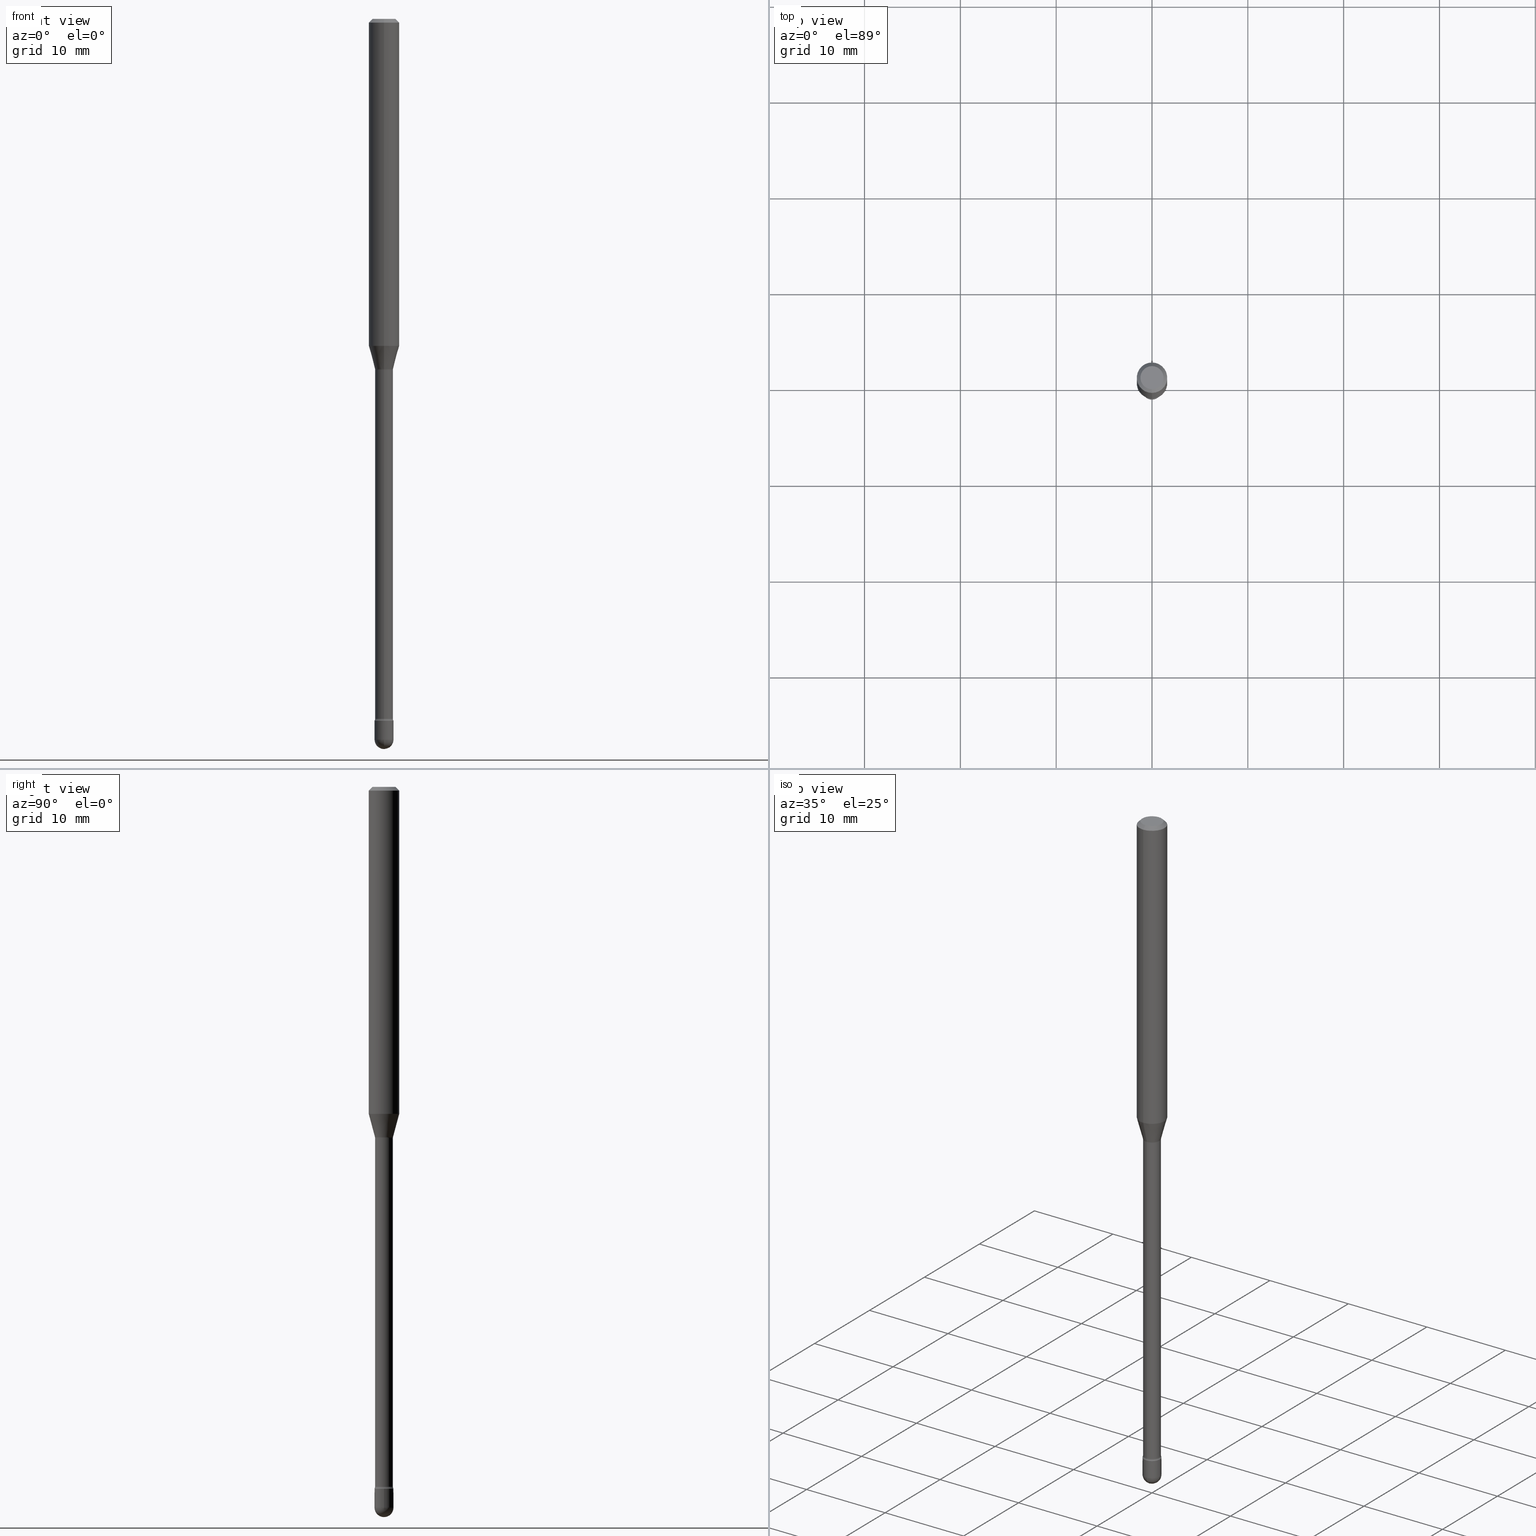
[diagram: canonical four-view strip — front | top / right | iso, engineering-drawing reading convention]
A machine part, canonical four-view strip (front | top / right | iso — engineering-drawing reading convention). The complete STEP part file that produces these views, byte-faithful:
ISO-10303-21;
HEADER;
FILE_DESCRIPTION (( 'STEP AP203' ),
    '1' );
FILE_NAME ('03957.STEP',
    '2024-04-09T21:26:37',
    ( '' ),
    ( '' ),
    'SwSTEP 2.0',
    'SolidWorks 2023',
    '' );
FILE_SCHEMA (( 'CONFIG_CONTROL_DESIGN' ));
ENDSEC;

DATA;
#1 = PERSON_AND_ORGANIZATION ( #190, #242 ) ;
#2 = CARTESIAN_POINT ( 'NONE',  ( 7.050366405053863188E-29, -1.006582636901149297E-14, -2.883000000000000451 ) ) ;
#3 = AXIS2_PLACEMENT_3D ( 'NONE', #455, #237, #415 ) ;
#4 = DIRECTION ( 'NONE',  ( -2.445496498457808529E-29, 3.491441681932533187E-15, 1.000000000000000000 ) ) ;
#5 = ORIENTED_EDGE ( 'NONE', *, *, #566, .T. ) ;
#6 = EDGE_CURVE ( 'NONE', #453, #73, #411, .T. ) ;
#7 = DIRECTION ( 'NONE',  ( -6.982962677686265922E-15, -1.000000000000000000, 0.000000000000000000 ) ) ;
#8 = ORIENTED_EDGE ( 'NONE', *, *, #533, .T. ) ;
#9 = AXIS2_PLACEMENT_3D ( 'NONE', #109, #82, #250 ) ;
#10 = CARTESIAN_POINT ( 'NONE',  ( 4.364351673553919652E-16, 0.06249999999999995143, -0.01500000000000030129 ) ) ;
#11 = CIRCLE ( 'NONE', #65, 0.06250000000000000000 ) ;
#12 = VECTOR ( 'NONE', #531, 39.37007874015748143 ) ;
#13 = AXIS2_PLACEMENT_3D ( 'NONE', #466, #285, #240 ) ;
#14 = VERTEX_POINT ( 'NONE', #425 ) ;
#15 = VERTEX_POINT ( 'NONE', #248 ) ;
#16 = APPROVAL_DATE_TIME ( #405, #39 ) ;
#17 = DIRECTION ( 'NONE',  ( -4.851104656540964275E-15, -0.7071067811865500152, -0.7071067811865450192 ) ) ;
#18 = ADVANCED_FACE ( 'NONE', ( #427 ), #198, .F. ) ;
#19 = CARTESIAN_POINT ( 'NONE',  ( 3.526304362048192117E-29, -5.034628061512207584E-15, -1.441974787463811136 ) ) ;
#20 = AXIS2_PLACEMENT_3D ( 'NONE', #397, #222, #129 ) ;
#21 = TOROIDAL_SURFACE ( 'NONE', #189, 0.05165000000000018188, 0.01500000000000006883 ) ;
#22 = CARTESIAN_POINT ( 'NONE',  ( -2.594946623866130786E-16, -0.03716111260566901109, -1.438092501787273214 ) ) ;
#23 = EDGE_CURVE ( 'NONE', #416, #201, #334, .T. ) ;
#24 = CARTESIAN_POINT ( 'NONE',  ( 3.526344293607193167E-29, -5.034570877246955827E-15, -1.441974787463811136 ) ) ;
#25 = ORIENTED_EDGE ( 'NONE', *, *, #6, .T. ) ;
#26 = DIRECTION ( 'NONE',  ( -2.445496498457808529E-29, 3.491441681932533187E-15, 1.000000000000000000 ) ) ;
#27 = DIRECTION ( 'NONE',  ( -1.000000000000000000, 6.982962677686265922E-15, -4.883557194083112340E-29 ) ) ;
#28 = VECTOR ( 'NONE', #563, 39.37007874015748143 ) ;
#29 = CARTESIAN_POINT ( 'NONE',  ( 3.668244747686732990E-31, -5.237162522898829216E-17, -0.01500000000000008271 ) ) ;
#30 = SPHERICAL_SURFACE ( 'NONE', #46, 0.03899999999999989586 ) ;
#31 = CARTESIAN_POINT ( 'NONE',  ( 3.285589318625157150E-29, -4.690844376180609543E-15, -1.343526486624344818 ) ) ;
#32 = CARTESIAN_POINT ( 'NONE',  ( -2.559255821372020374E-16, -0.03665000000000005753, 6.060347365340735884E-16 ) ) ;
#33 = ADVANCED_FACE ( 'NONE', ( #71 ), #30, .T. ) ;
#34 = DIRECTION ( 'NONE',  ( -6.982962677686265922E-15, -1.000000000000000000, 3.491441681932533187E-15 ) ) ;
#35 = ORIENTED_EDGE ( 'NONE', *, *, #205, .F. ) ;
#36 = AXIS2_PLACEMENT_3D ( 'NONE', #300, #125, #477 ) ;
#37 = LOCAL_TIME ( 17, 26, 37.00000000000000000, #86 ) ;
#38 = PLANE ( 'NONE',  #433 ) ;
#39 = APPROVAL ( #94, 'UNSPECIFIED' ) ;
#40 = DIRECTION ( 'NONE',  ( -6.982962677686267499E-15, -1.000000000000000000, 0.000000000000000000 ) ) ;
#41 = APPROVAL_DATE_TIME ( #435, #309 ) ;
#42 = DIRECTION ( 'NONE',  ( -6.982962677686266711E-15, -1.000000000000000000, 0.000000000000000000 ) ) ;
#43 = CC_DESIGN_PERSON_AND_ORGANIZATION_ASSIGNMENT ( #295, #88, ( #241 ) ) ;
#44 = CC_DESIGN_DATE_AND_TIME_ASSIGNMENT ( #350, #437, ( #326 ) ) ;
#45 =( LENGTH_UNIT ( ) NAMED_UNIT ( * ) SI_UNIT ( $, .METRE. ) );
#46 = AXIS2_PLACEMENT_3D ( 'NONE', #418, #27, #197 ) ;
#47 = DIRECTION ( 'NONE',  ( -2.445496498457808529E-29, 3.491441681932533187E-15, 1.000000000000000000 ) ) ;
#48 = CONICAL_SURFACE ( 'NONE', #368, 0.03716111260566398733, 0.2617993877991494633 ) ;
#49 = PERSON_AND_ORGANIZATION ( #190, #242 ) ;
#50 = CARTESIAN_POINT ( 'NONE',  ( 7.241033135114191454E-29, -1.033827624431455434E-14, -2.961000000000000298 ) ) ;
#51 = CALENDAR_DATE ( 2024, 9, 4 ) ;
#52 = DIRECTION ( 'NONE',  ( -2.445468806185136597E-29, 3.491481338843145583E-15, 1.000000000000000000 ) ) ;
#53 = ORIENTED_EDGE ( 'NONE', *, *, #510, .F. ) ;
#54 = VERTEX_POINT ( 'NONE', #378 ) ;
#55 = DIRECTION ( 'NONE',  ( -6.982962677686265922E-15, -1.000000000000000000, 3.491441681932533582E-15 ) ) ;
#56 = CIRCLE ( 'NONE', #537, 0.06250000000000000000 ) ;
#57 = EDGE_LOOP ( 'NONE', ( #559, #380, #35, #542 ) ) ;
#58 = ADVANCED_FACE ( 'NONE', ( #555 ), #114, .T. ) ;
#59 = LINE ( 'NONE', #406, #487 ) ;
#60 = CARTESIAN_POINT ( 'NONE',  ( 0.03900000000000000688, -1.047444401652943635E-14, -2.961000000000000298 ) ) ;
#61 = ORIENTED_EDGE ( 'NONE', *, *, #99, .F. ) ;
#62 = CC_DESIGN_PERSON_AND_ORGANIZATION_ASSIGNMENT ( #528, #130, ( #252 ) ) ;
#63 = CARTESIAN_POINT ( 'NONE',  ( 0.000000000000000000, 0.000000000000000000, 0.000000000000000000 ) ) ;
#64 = APPROVAL_PERSON_ORGANIZATION ( #124, #309, #393 ) ;
#65 = AXIS2_PLACEMENT_3D ( 'NONE', #525, #399, #445 ) ;
#66 = CIRCLE ( 'NONE', #395, 0.03900000000000000688 ) ;
#67 = ADVANCED_FACE ( 'NONE', ( #513 ), #251, .T. ) ;
#68 = DIRECTION ( 'NONE',  ( -6.982962677686265922E-15, -1.000000000000000000, 3.491441681932533187E-15 ) ) ;
#69 = ORIENTED_EDGE ( 'NONE', *, *, #321, .T. ) ;
#70 = CARTESIAN_POINT ( 'NONE',  ( -2.559255821371321246E-16, -0.03665000000001015362, -2.874939137763242059 ) ) ;
#71 = FACE_OUTER_BOUND ( 'NONE', #185, .T. ) ;
#72 = DIRECTION ( 'NONE',  ( -2.445496498457808529E-29, 3.491441681932533187E-15, 1.000000000000000000 ) ) ;
#73 = VERTEX_POINT ( 'NONE', #521 ) ;
#74 = EDGE_LOOP ( 'NONE', ( #386, #480, #143, #238 ) ) ;
#75 = AXIS2_PLACEMENT_3D ( 'NONE', #505, #107, #279 ) ;
#76 = CARTESIAN_POINT ( 'NONE',  ( 2.640455861472115001E-16, 0.03716111260565897051, -1.438092501787273214 ) ) ;
#77 = EDGE_CURVE ( 'NONE', #465, #54, #11, .T. ) ;
#78 = ORIENTED_EDGE ( 'NONE', *, *, #471, .T. ) ;
#79 = CARTESIAN_POINT ( 'NONE',  ( -1.169113584055446105E-44, 1.669184350826100908E-30, 4.780733988912460139E-16 ) ) ;
#80 = VERTEX_POINT ( 'NONE', #438 ) ;
#81 = EDGE_LOOP ( 'NONE', ( #246, #341, #135, #343 ) ) ;
#82 = DIRECTION ( 'NONE',  ( -2.445496498457808529E-29, 3.491441681932533187E-15, 1.000000000000000000 ) ) ;
#83 = CARTESIAN_POINT ( 'NONE',  ( 3.516850177579206670E-29, -5.021016103214722180E-15, -1.438092501787273214 ) ) ;
#84 = EDGE_CURVE ( 'NONE', #416, #80, #412, .T. ) ;
#85 = CONICAL_SURFACE ( 'NONE', #323, 0.06250000000000000000, 0.7853981633974483900 ) ;
#86 = COORDINATED_UNIVERSAL_TIME_OFFSET ( 5, 0, .BEHIND. ) ;
#87 = LINE ( 'NONE', #351, #28 ) ;
#88 = PERSON_AND_ORGANIZATION_ROLE ( 'design_owner' ) ;
#89 = DIRECTION ( 'NONE',  ( -2.445468806185136597E-29, 3.491481338843145583E-15, 1.000000000000000000 ) ) ;
#90 = EDGE_LOOP ( 'NONE', ( #491, #167 ) ) ;
#91 = DIRECTION ( 'NONE',  ( -6.982962677686266711E-15, -1.000000000000000000, 3.491441681932533582E-15 ) ) ;
#92 = PERSON_AND_ORGANIZATION_ROLE ( 'creator' ) ;
#93 = CARTESIAN_POINT ( 'NONE',  ( -3.606700223024266282E-16, -0.05165000000001022246, -2.874939137763242059 ) ) ;
#94 = APPROVAL_STATUS ( 'not_yet_approved' ) ;
#95 = PLANE ( 'NONE',  #332 ) ;
#96 = DATE_AND_TIME ( #141, #401 ) ;
#97 = DIRECTION ( 'NONE',  ( 2.445496498457808529E-29, -3.491441681932533187E-15, -1.000000000000000000 ) ) ;
#98 = ORIENTED_EDGE ( 'NONE', *, *, #223, .T. ) ;
#99 = EDGE_CURVE ( 'NONE', #416, #14, #136, .T. ) ;
#100 = DATE_TIME_ROLE ( 'classification_date' ) ;
#101 = LOCAL_TIME ( 17, 26, 37.00000000000000000, #263 ) ;
#102 = DIRECTION ( 'NONE',  ( 4.937700262164548042E-15, 0.7071067811865451302, -0.7071067811865499042 ) ) ;
#103 = EDGE_LOOP ( 'NONE', ( #53, #550, #112, #274 ) ) ;
#104 = DIRECTION ( 'NONE',  ( 2.445496498457808529E-29, -3.491441681932533187E-15, -1.000000000000000000 ) ) ;
#105 = EDGE_LOOP ( 'NONE', ( #277, #25, #428, #162 ) ) ;
#106 = CC_DESIGN_PERSON_AND_ORGANIZATION_ASSIGNMENT ( #1, #173, ( #499 ) ) ;
#107 = DIRECTION ( 'NONE',  ( -2.445496498457808529E-29, 3.491441681932533187E-15, 1.000000000000000000 ) ) ;
#108 = ADVANCED_FACE ( 'NONE', ( #535 ), #38, .F. ) ;
#109 = CARTESIAN_POINT ( 'NONE',  ( 3.516850177579206670E-29, -5.021016103214722180E-15, -1.438092501787273214 ) ) ;
#110 = CIRCLE ( 'NONE', #180, 0.04749999999999999362 ) ;
#111 = CYLINDRICAL_SURFACE ( 'NONE', #434, 0.06250000000000000000 ) ;
#112 = ORIENTED_EDGE ( 'NONE', *, *, #284, .T. ) ;
#113 = CARTESIAN_POINT ( 'NONE',  ( -3.773273898774340269E-16, -0.04749999999999999362, 8.309456411699580743E-17 ) ) ;
#114 = SPHERICAL_SURFACE ( 'NONE', #20, 0.03899999999999989586 ) ;
#115 = EDGE_CURVE ( 'NONE', #157, #446, #292, .T. ) ;
#116 = FACE_OUTER_BOUND ( 'NONE', #459, .T. ) ;
#117 = ORIENTED_EDGE ( 'NONE', *, *, #462, .F. ) ;
#118 = ORIENTED_EDGE ( 'NONE', *, *, #155, .F. ) ;
#119 = AXIS2_PLACEMENT_3D ( 'NONE', #2, #538, #267 ) ;
#120 = DIRECTION ( 'NONE',  ( -6.982962677686265133E-15, -1.000000000000000000, 0.000000000000000000 ) ) ;
#121 = EDGE_LOOP ( 'NONE', ( #265, #230, #69, #249 ) ) ;
#122 = ORIENTED_EDGE ( 'NONE', *, *, #140, .T. ) ;
#123 = EDGE_CURVE ( 'NONE', #204, #338, #87, .T. ) ;
#124 = PERSON_AND_ORGANIZATION ( #190, #242 ) ;
#125 = DIRECTION ( 'NONE',  ( -2.445496498457808529E-29, 3.491441681932533187E-15, 1.000000000000000000 ) ) ;
#126 = CIRCLE ( 'NONE', #9, 0.03716111260566398733 ) ;
#127 = CLOSED_SHELL ( 'NONE', ( #371, #382, #174, #349, #492, #275, #218, #67, #329, #108, #233, #18, #482, #516 ) ) ;
#128 = CIRCLE ( 'NONE', #362, 0.01500000000000001853 ) ;
#129 = DIRECTION ( 'NONE',  ( 6.982962677686265922E-15, 1.000000000000000000, 0.000000000000000000 ) ) ;
#130 = PERSON_AND_ORGANIZATION_ROLE ( 'classification_officer' ) ;
#131 = FACE_OUTER_BOUND ( 'NONE', #103, .T. ) ;
#132 = EDGE_CURVE ( 'NONE', #338, #187, #507, .T. ) ;
#133 = APPROVAL_STATUS ( 'not_yet_approved' ) ;
#134 = DIRECTION ( 'NONE',  ( -6.982962677686265922E-15, -1.000000000000000000, 3.491441681932533187E-15 ) ) ;
#135 = ORIENTED_EDGE ( 'NONE', *, *, #115, .F. ) ;
#136 = CIRCLE ( 'NONE', #262, 0.01500000000000007057 ) ;
#137 = CARTESIAN_POINT ( 'NONE',  ( 7.241033135114191454E-29, -1.033827624431455434E-14, -2.961000000000000298 ) ) ;
#138 = ORIENTED_EDGE ( 'NONE', *, *, #544, .F. ) ;
#139 = DIRECTION ( 'NONE',  ( -2.438088387897960049E-29, 3.491481338843145188E-15, 1.000000000000000000 ) ) ;
#140 = EDGE_CURVE ( 'NONE', #254, #201, #128, .T. ) ;
#141 = CALENDAR_DATE ( 2024, 9, 4 ) ;
#142 = DIRECTION ( 'NONE',  ( -2.445496498457807969E-29, 3.491441681932533582E-15, 1.000000000000000000 ) ) ;
#143 = ORIENTED_EDGE ( 'NONE', *, *, #440, .T. ) ;
#144 = CARTESIAN_POINT ( 'NONE',  ( 3.668244747686732990E-31, -5.237162522898829216E-17, -0.01500000000000008271 ) ) ;
#145 = AXIS2_PLACEMENT_3D ( 'NONE', #24, #460, #120 ) ;
#146 = ORIENTED_EDGE ( 'NONE', *, *, #258, .F. ) ;
#147 = FACE_OUTER_BOUND ( 'NONE', #278, .T. ) ;
#148 = LINE ( 'NONE', #328, #553 ) ;
#149 = CARTESIAN_POINT ( 'NONE',  ( -4.364351673553912750E-16, -0.06250000000000005551, -0.01499999999999986587 ) ) ;
#150 = AXIS2_PLACEMENT_3D ( 'NONE', #560, #165, #523 ) ;
#151 = ORIENTED_EDGE ( 'NONE', *, *, #23, .F. ) ;
#152 = CIRCLE ( 'NONE', #227, 0.03899999999999989586 ) ;
#153 = CARTESIAN_POINT ( 'NONE',  ( 4.440892098500625669E-16, 0.06250000000000000000, 2.598582937704627637E-16 ) ) ;
#154 = ORIENTED_EDGE ( 'NONE', *, *, #99, .T. ) ;
#155 = EDGE_CURVE ( 'NONE', #80, #416, #402, .T. ) ;
#156 = DIRECTION ( 'NONE',  ( -2.445496498457808529E-29, 3.491441681932533187E-15, 1.000000000000000000 ) ) ;
#157 = VERTEX_POINT ( 'NONE', #529 ) ;
#158 = ORIENTED_EDGE ( 'NONE', *, *, #23, .T. ) ;
#159 = CARTESIAN_POINT ( 'NONE',  ( 3.526304362048192117E-29, -5.034628061512207584E-15, -1.441974787463811136 ) ) ;
#160 = ORIENTED_EDGE ( 'NONE', *, *, #123, .F. ) ;
#161 = AXIS2_PLACEMENT_3D ( 'NONE', #483, #47, #432 ) ;
#162 = ORIENTED_EDGE ( 'NONE', *, *, #140, .F. ) ;
#163 = AXIS2_PLACEMENT_3D ( 'NONE', #497, #229, #409 ) ;
#164 = EDGE_CURVE ( 'NONE', #536, #562, #110, .T. ) ;
#165 = DIRECTION ( 'NONE',  ( -2.445468806185136597E-29, 3.491481338843145583E-15, 1.000000000000000000 ) ) ;
#166 = ORIENTED_EDGE ( 'NONE', *, *, #527, .F. ) ;
#167 = ORIENTED_EDGE ( 'NONE', *, *, #164, .T. ) ;
#168 = DATE_AND_TIME ( #389, #375 ) ;
#169 = DIRECTION ( 'NONE',  ( -6.982962677686266711E-15, -1.000000000000000000, 0.000000000000000000 ) ) ;
#170 = PERSON_AND_ORGANIZATION ( #190, #242 ) ;
#171 = DIRECTION ( 'NONE',  ( -2.445496498457808529E-29, 3.491441681932533187E-15, 1.000000000000000000 ) ) ;
#172 = APPROVAL_PERSON_ORGANIZATION ( #503, #39, #489 ) ;
#173 = PERSON_AND_ORGANIZATION_ROLE ( 'design_supplier' ) ;
#174 = ADVANCED_FACE ( 'NONE', ( #394 ), #21, .F. ) ;
#175 = DIRECTION ( 'NONE',  ( -2.445496498457808529E-29, 3.491441681932533187E-15, 1.000000000000000000 ) ) ;
#176 = ORIENTED_EDGE ( 'NONE', *, *, #181, .F. ) ;
#177 = DIRECTION ( 'NONE',  ( -2.445496498457808529E-29, 3.491441681932533187E-15, 1.000000000000000000 ) ) ;
#178 = ORIENTED_EDGE ( 'NONE', *, *, #471, .F. ) ;
#179 = CC_DESIGN_APPROVAL ( #39, ( #252 ) ) ;
#180 = AXIS2_PLACEMENT_3D ( 'NONE', #436, #177, #91 ) ;
#181 = EDGE_CURVE ( 'NONE', #381, #187, #355, .T. ) ;
#182 = DIRECTION ( 'NONE',  ( -2.445496498457808529E-29, 3.491441681932533187E-15, 1.000000000000000000 ) ) ;
#183 = VECTOR ( 'NONE', #340, 39.37007874015748143 ) ;
#184 = FACE_OUTER_BOUND ( 'NONE', #317, .T. ) ;
#185 = EDGE_LOOP ( 'NONE', ( #294, #419, #146, #320 ) ) ;
#186 = FACE_OUTER_BOUND ( 'NONE', #121, .T. ) ;
#187 = VERTEX_POINT ( 'NONE', #264 ) ;
#188 = DIRECTION ( 'NONE',  ( -2.445496498457808529E-29, 3.491441681932533187E-15, 1.000000000000000000 ) ) ;
#189 = AXIS2_PLACEMENT_3D ( 'NONE', #439, #4, #360 ) ;
#190 = PERSON ( 'UNSPECIFIED', 'UNSPECIFIED', 'UNSPECIFIED', ('UNSPECIFIED'), ('UNSPECIFIED'), ('UNSPECIFIED') ) ;
#191 = DIRECTION ( 'NONE',  ( -1.807323732225324223E-15, -0.2588190451025173533, 0.9659258262890690894 ) ) ;
#192 = CARTESIAN_POINT ( 'NONE',  ( 2.023754227173715376E-45, -2.888940547568135076E-31, -8.274891577479950812E-17 ) ) ;
#193 = EDGE_LOOP ( 'NONE', ( #166, #361, #154, #298 ) ) ;
#194 = DIRECTION ( 'NONE',  ( -2.445496498457808529E-29, 3.491441681932533187E-15, 1.000000000000000000 ) ) ;
#195 = EDGE_CURVE ( 'NONE', #453, #254, #253, .T. ) ;
#196 = CIRCLE ( 'NONE', #534, 0.03899999999999999994 ) ;
#197 = DIRECTION ( 'NONE',  ( 6.982962677686265922E-15, 1.000000000000000000, 0.000000000000000000 ) ) ;
#198 = TOROIDAL_SURFACE ( 'NONE', #524, 0.05165000000000018188, 0.01500000000000006883 ) ;
#199 = CIRCLE ( 'NONE', #526, 0.03900000000000000688 ) ;
#200 = CARTESIAN_POINT ( 'NONE',  ( 4.440892098500952553E-16, 0.06249999999999528155, -1.343526486624345040 ) ) ;
#201 = VERTEX_POINT ( 'NONE', #479 ) ;
#202 = DIRECTION ( 'NONE',  ( -2.445496498457808529E-29, 3.491441681932533187E-15, 1.000000000000000000 ) ) ;
#203 = CC_DESIGN_PERSON_AND_ORGANIZATION_ASSIGNMENT ( #49, #385, ( #499 ) ) ;
#204 = VERTEX_POINT ( 'NONE', #297 ) ;
#205 = EDGE_CURVE ( 'NONE', #381, #15, #199, .T. ) ;
#206 = CARTESIAN_POINT ( 'NONE',  ( 3.669953230201632962E-16, 0.05164999999999014824, -2.874939137763242059 ) ) ;
#207 = DIRECTION ( 'NONE',  ( -6.982962677686265922E-15, -1.000000000000000000, 3.491441681932533187E-15 ) ) ;
#208 = LOCAL_TIME ( 17, 26, 37.00000000000000000, #494 ) ;
#209 = VECTOR ( 'NONE', #337, 39.37007874015748143 ) ;
#210 = CC_DESIGN_SECURITY_CLASSIFICATION ( #252, ( #499 ) ) ;
#211 = APPLICATION_PROTOCOL_DEFINITION ( 'international standard', 'config_control_design', 1994, #493 ) ;
#212 = DIRECTION ( 'NONE',  ( -2.445496498457808529E-29, 3.491441681932533187E-15, 1.000000000000000000 ) ) ;
#213 = EDGE_LOOP ( 'NONE', ( #468, #407, #122, #78 ) ) ;
#214 = CARTESIAN_POINT ( 'NONE',  ( 0.000000000000000000, 0.000000000000000000, 0.000000000000000000 ) ) ;
#215 = DIRECTION ( 'NONE',  ( -6.982962677686263555E-15, -1.000000000000000000, 0.000000000000000000 ) ) ;
#216 = DIRECTION ( 'NONE',  ( 0.000000000000000000, 0.000000000000000000, 1.000000000000000000 ) ) ;
#217 = DIRECTION ( 'NONE',  ( -2.445496498457808529E-29, 3.491441681932533187E-15, 1.000000000000000000 ) ) ;
#218 = ADVANCED_FACE ( 'NONE', ( #131 ), #48, .T. ) ;
#219 =( NAMED_UNIT ( * ) PLANE_ANGLE_UNIT ( ) SI_UNIT ( $, .RADIAN. ) );
#220 = DIRECTION ( 'NONE',  ( 1.000000000000000000, -6.982962677686258033E-15, 0.000000000000000000 ) ) ;
#221 = EDGE_LOOP ( 'NONE', ( #118, #498, #98, #61 ) ) ;
#222 = DIRECTION ( 'NONE',  ( -1.000000000000000000, 6.982962677686265922E-15, -4.883557194083112340E-29 ) ) ;
#223 = EDGE_CURVE ( 'NONE', #345, #14, #552, .T. ) ;
#224 = DIRECTION ( 'NONE',  ( 1.000000000000000000, -6.982962677686257244E-15, 0.000000000000000000 ) ) ;
#225 = AXIS2_PLACEMENT_3D ( 'NONE', #346, #286, #520 ) ;
#226 = ORIENTED_EDGE ( 'NONE', *, *, #223, .F. ) ;
#227 = AXIS2_PLACEMENT_3D ( 'NONE', #469, #288, #293 ) ;
#228 = FACE_OUTER_BOUND ( 'NONE', #105, .T. ) ;
#229 = DIRECTION ( 'NONE',  ( -2.445468806185136597E-29, 3.491481338843145583E-15, 1.000000000000000000 ) ) ;
#230 = ORIENTED_EDGE ( 'NONE', *, *, #410, .F. ) ;
#231 = SHAPE_DEFINITION_REPRESENTATION ( #512, #236 ) ;
#232 = CYLINDRICAL_SURFACE ( 'NONE', #377, 0.03899999999999999994 ) ;
#233 = ADVANCED_FACE ( 'NONE', ( #372 ), #95, .F. ) ;
#234 = DIRECTION ( 'NONE',  ( -2.445468806185136597E-29, 3.491481338843145583E-15, 1.000000000000000000 ) ) ;
#235 = TOROIDAL_SURFACE ( 'NONE', #244, 0.05165000000000000840, 0.01500000000000002373 ) ;
#236 = ADVANCED_BREP_SHAPE_REPRESENTATION ( '03957', ( #358, #369, #551 ), #283 ) ;
#237 = DIRECTION ( 'NONE',  ( -2.445468806185136597E-29, 3.491481338843145583E-15, 1.000000000000000000 ) ) ;
#238 = ORIENTED_EDGE ( 'NONE', *, *, #429, .F. ) ;
#239 = ADVANCED_FACE ( 'NONE', ( #184 ), #400, .T. ) ;
#240 = DIRECTION ( 'NONE',  ( 6.982962677686265922E-15, 1.000000000000000000, 0.000000000000000000 ) ) ;
#241 = PRODUCT ( '03957', '03957', '', ( #357 ) ) ;
#242 = ORGANIZATION ( 'UNSPECIFIED', 'UNSPECIFIED', '' ) ;
#243 = ORIENTED_EDGE ( 'NONE', *, *, #155, .T. ) ;
#244 = AXIS2_PLACEMENT_3D ( 'NONE', #19, #188, #370 ) ;
#245 = DIRECTION ( 'NONE',  ( -6.982962677686266711E-15, -1.000000000000000000, 3.491441681932533582E-15 ) ) ;
#246 = ORIENTED_EDGE ( 'NONE', *, *, #549, .T. ) ;
#247 = DIRECTION ( 'NONE',  ( -6.982962677686265922E-15, -1.000000000000000000, 3.483106191921935554E-15 ) ) ;
#248 = CARTESIAN_POINT ( 'NONE',  ( 2.723355444298364504E-16, 0.03899999999998961936, -2.961000000000000298 ) ) ;
#249 = ORIENTED_EDGE ( 'NONE', *, *, #429, .T. ) ;
#250 = DIRECTION ( 'NONE',  ( -6.982962677686266711E-15, -1.000000000000000000, 0.000000000000000000 ) ) ;
#251 = CYLINDRICAL_SURFACE ( 'NONE', #342, 0.06250000000000000000 ) ;
#252 = SECURITY_CLASSIFICATION ( '', '', #354 ) ;
#253 = CIRCLE ( 'NONE', #442, 0.03716111260566398733 ) ;
#254 = VERTEX_POINT ( 'NONE', #316 ) ;
#255 = CC_DESIGN_APPROVAL ( #280, ( #326 ) ) ;
#256 = CALENDAR_DATE ( 2024, 9, 4 ) ;
#257 = DIRECTION ( 'NONE',  ( -1.000000000000000000, 6.982962677686265922E-15, -4.883557194083112340E-29 ) ) ;
#258 = EDGE_CURVE ( 'NONE', #204, #515, #271, .T. ) ;
#259 = PERSON_AND_ORGANIZATION ( #190, #242 ) ;
#260 = DIRECTION ( 'NONE',  ( -2.445468806185136597E-29, 3.491481338843145583E-15, 1.000000000000000000 ) ) ;
#261 = CARTESIAN_POINT ( 'NONE',  ( -3.606700223024604506E-16, -0.05165000000000504604, -1.441974787463810914 ) ) ;
#262 = AXIS2_PLACEMENT_3D ( 'NONE', #93, #348, #215 ) ;
#263 = COORDINATED_UNIVERSAL_TIME_OFFSET ( 5, 0, .BEHIND. ) ;
#264 = CARTESIAN_POINT ( 'NONE',  ( 0.03899999999999999994, -1.033827624431455276E-14, -2.883000000000000451 ) ) ;
#265 = ORIENTED_EDGE ( 'NONE', *, *, #339, .F. ) ;
#266 = ADVANCED_FACE ( 'NONE', ( #454 ), #232, .T. ) ;
#267 = DIRECTION ( 'NONE',  ( -6.982962677686264344E-15, -1.000000000000000000, 0.000000000000000000 ) ) ;
#268 = DIRECTION ( 'NONE',  ( 6.982962677686265922E-15, 1.000000000000000000, -3.483106191921935554E-15 ) ) ;
#269 = ORIENTED_EDGE ( 'NONE', *, *, #205, .T. ) ;
#270 = AXIS2_PLACEMENT_3D ( 'NONE', #159, #417, #68 ) ;
#271 = CIRCLE ( 'NONE', #353, 0.03900000000000000688 ) ;
#272 = CARTESIAN_POINT ( 'NONE',  ( 3.668244747686732990E-31, -5.237162522898829216E-17, -0.01500000000000008271 ) ) ;
#273 = ORIENTED_EDGE ( 'NONE', *, *, #123, .T. ) ;
#274 = ORIENTED_EDGE ( 'NONE', *, *, #448, .F. ) ;
#275 = ADVANCED_FACE ( 'NONE', ( #447 ), #302, .T. ) ;
#276 = DIRECTION ( 'NONE',  ( 6.982962677686265922E-15, 1.000000000000000000, -3.483106191921935554E-15 ) ) ;
#277 = ORIENTED_EDGE ( 'NONE', *, *, #195, .F. ) ;
#278 = EDGE_LOOP ( 'NONE', ( #289, #509, #178, #151 ) ) ;
#279 = DIRECTION ( 'NONE',  ( -6.982962677686265922E-15, -1.000000000000000000, 3.491441681932533582E-15 ) ) ;
#280 = APPROVAL ( #133, 'UNSPECIFIED' ) ;
#281 = DIRECTION ( 'NONE',  ( -2.445496498457808529E-29, 3.491441681932533187E-15, 1.000000000000000000 ) ) ;
#282 = AXIS2_PLACEMENT_3D ( 'NONE', #29, #156, #247 ) ;
#283 =( GEOMETRIC_REPRESENTATION_CONTEXT ( 3 ) GLOBAL_UNCERTAINTY_ASSIGNED_CONTEXT ( ( #287 ) ) GLOBAL_UNIT_ASSIGNED_CONTEXT ( ( #431, #219, #476 ) ) REPRESENTATION_CONTEXT ( 'NONE', 'WORKASPACE' ) );
#284 = EDGE_CURVE ( 'NONE', #254, #157, #495, .T. ) ;
#285 = DIRECTION ( 'NONE',  ( 1.000000000000000000, -6.982962677686265922E-15, 4.883557194083112340E-29 ) ) ;
#286 = DIRECTION ( 'NONE',  ( 1.000000000000000000, -7.105427357601001070E-15, 4.926315022884995937E-29 ) ) ;
#287 = UNCERTAINTY_MEASURE_WITH_UNIT (LENGTH_MEASURE( 1.000000000000000082E-05 ), #431, 'distance_accuracy_value', 'NONE');
#288 = DIRECTION ( 'NONE',  ( -1.000000000000000000, 7.105427357601001070E-15, -4.926315508542082329E-29 ) ) ;
#289 = ORIENTED_EDGE ( 'NONE', *, *, #84, .T. ) ;
#290 = CYLINDRICAL_SURFACE ( 'NONE', #315, 0.03665000000000005753 ) ;
#291 = ORIENTED_EDGE ( 'NONE', *, *, #164, .F. ) ;
#292 = CIRCLE ( 'NONE', #36, 0.06250000000000000000 ) ;
#293 = DIRECTION ( 'NONE',  ( -7.105427357601000281E-15, -1.000000000000000000, 0.000000000000000000 ) ) ;
#294 = ORIENTED_EDGE ( 'NONE', *, *, #504, .F. ) ;
#295 = PERSON_AND_ORGANIZATION ( #190, #242 ) ;
#296 = ORIENTED_EDGE ( 'NONE', *, *, #321, .F. ) ;
#297 = CARTESIAN_POINT ( 'NONE',  ( -0.03900000000000000688, -9.924996805153232223E-15, -2.961000000000000298 ) ) ;
#298 = ORIENTED_EDGE ( 'NONE', *, *, #462, .T. ) ;
#299 = APPROVAL_STATUS ( 'not_yet_approved' ) ;
#300 = CARTESIAN_POINT ( 'NONE',  ( 3.285589318625157150E-29, -4.690844376180609543E-15, -1.343526486624344818 ) ) ;
#301 = TOROIDAL_SURFACE ( 'NONE', #270, 0.05165000000000000840, 0.01500000000000002373 ) ;
#302 = CONICAL_SURFACE ( 'NONE', #518, 0.03716111260566398733, 0.2617993877991494633 ) ;
#303 = ADVANCED_FACE ( 'NONE', ( #490 ), #502, .T. ) ;
#304 = CARTESIAN_POINT ( 'NONE',  ( 3.840629472727447874E-16, 0.04749999999999999362, -2.485923956665947867E-16 ) ) ;
#305 = DIRECTION ( 'NONE',  ( 2.445496498457807969E-29, -3.491441681932533582E-15, -1.000000000000000000 ) ) ;
#306 = ORIENTED_EDGE ( 'NONE', *, *, #311, .T. ) ;
#307 = COORDINATED_UNIVERSAL_TIME_OFFSET ( 5, 0, .BEHIND. ) ;
#308 = CARTESIAN_POINT ( 'NONE',  ( 7.030653594679319492E-29, -1.003768233860576074E-14, -2.874939137763242059 ) ) ;
#309 = APPROVAL ( #299, 'UNSPECIFIED' ) ;
#310 = APPROVAL_ROLE ( '' ) ;
#311 = EDGE_CURVE ( 'NONE', #15, #204, #66, .T. ) ;
#312 = CARTESIAN_POINT ( 'NONE',  ( -1.169113584055446105E-44, 1.669184350826100908E-30, 4.780733988912460139E-16 ) ) ;
#313 = ORIENTED_EDGE ( 'NONE', *, *, #77, .F. ) ;
#314 = CIRCLE ( 'NONE', #145, 0.03665000000000000202 ) ;
#315 = AXIS2_PLACEMENT_3D ( 'NONE', #331, #26, #508 ) ;
#316 = CARTESIAN_POINT ( 'NONE',  ( -2.594946623866130786E-16, -0.03716111260566901109, -1.438092501787273214 ) ) ;
#317 = EDGE_LOOP ( 'NONE', ( #5, #408 ) ) ;
#318 = CARTESIAN_POINT ( 'NONE',  ( 3.516850177579206670E-29, -5.021016103214722180E-15, -1.438092501787273214 ) ) ;
#319 = DIRECTION ( 'NONE',  ( 1.000000000000000000, -6.982962677686257244E-15, 0.000000000000000000 ) ) ;
#320 = ORIENTED_EDGE ( 'NONE', *, *, #311, .F. ) ;
#321 = EDGE_CURVE ( 'NONE', #562, #54, #365, .T. ) ;
#322 = AXIS2_PLACEMENT_3D ( 'NONE', #206, #546, #554 ) ;
#323 = AXIS2_PLACEMENT_3D ( 'NONE', #144, #104, #276 ) ;
#324 = DIRECTION ( 'NONE',  ( 1.000000000000000000, -6.982962677686265922E-15, 4.876176775795935793E-29 ) ) ;
#325 = EDGE_LOOP ( 'NONE', ( #160, #450, #384, #472, #496 ) ) ;
#326 = PRODUCT_DEFINITION ( 'UNKNOWN', '', #499, #547 ) ;
#327 = CYLINDRICAL_SURFACE ( 'NONE', #75, 0.03665000000000005753 ) ;
#328 = CARTESIAN_POINT ( 'NONE',  ( 2.604139126560771269E-16, 0.03665000000000005753, 3.501120612484184887E-16 ) ) ;
#329 = ADVANCED_FACE ( 'NONE', ( #186 ), #501, .T. ) ;
#330 = CIRCLE ( 'NONE', #322, 0.01500000000000007057 ) ;
#331 = CARTESIAN_POINT ( 'NONE',  ( -1.169113584055446105E-44, 1.669184350826100908E-30, 4.780733988912460139E-16 ) ) ;
#332 = AXIS2_PLACEMENT_3D ( 'NONE', #545, #142, #55 ) ;
#333 = CIRCLE ( 'NONE', #150, 0.03899999999999999994 ) ;
#334 = LINE ( 'NONE', #32, #500 ) ;
#335 = CARTESIAN_POINT ( 'NONE',  ( -4.364351673553916201E-16, -0.06250000000000000000, 6.962885040120294121E-16 ) ) ;
#336 = DIRECTION ( 'NONE',  ( -2.445496498457808529E-29, 3.491441681932533187E-15, 1.000000000000000000 ) ) ;
#337 = DIRECTION ( 'NONE',  ( -2.445496498457808529E-29, 3.491441681932533582E-15, 1.000000000000000000 ) ) ;
#338 = VERTEX_POINT ( 'NONE', #452 ) ;
#339 = EDGE_CURVE ( 'NONE', #536, #465, #59, .T. ) ;
#340 = DIRECTION ( 'NONE',  ( -2.445496498457808529E-29, 3.491441681932533582E-15, 1.000000000000000000 ) ) ;
#341 = ORIENTED_EDGE ( 'NONE', *, *, #510, .T. ) ;
#342 = AXIS2_PLACEMENT_3D ( 'NONE', #312, #175, #134 ) ;
#343 = ORIENTED_EDGE ( 'NONE', *, *, #284, .F. ) ;
#344 = AXIS2_PLACEMENT_3D ( 'NONE', #404, #139, #324 ) ;
#345 = VERTEX_POINT ( 'NONE', #449 ) ;
#346 = CARTESIAN_POINT ( 'NONE',  ( 3.669953230201269593E-16, 0.05164999999999497077, -1.441974787463811580 ) ) ;
#347 = APPROVAL_DATE_TIME ( #168, #280 ) ;
#348 = DIRECTION ( 'NONE',  ( -1.000000000000000000, 6.982962677686265922E-15, -4.883557194083112340E-29 ) ) ;
#349 = ADVANCED_FACE ( 'NONE', ( #541 ), #85, .T. ) ;
#350 = DATE_AND_TIME ( #444, #101 ) ;
#351 = CARTESIAN_POINT ( 'NONE',  ( -0.03899999999999999994, 2.771116669464390721E-16, -1.918384685199413078E-30 ) ) ;
#352 = CIRCLE ( 'NONE', #13, 0.03899999999999989586 ) ;
#353 = AXIS2_PLACEMENT_3D ( 'NONE', #137, #234, #319 ) ;
#354 = SECURITY_CLASSIFICATION_LEVEL ( 'unclassified' ) ;
#355 = LINE ( 'NONE', #565, #12 ) ;
#356 = CC_DESIGN_PERSON_AND_ORGANIZATION_ASSIGNMENT ( #170, #92, ( #326 ) ) ;
#357 = MECHANICAL_CONTEXT ( 'NONE', #493, 'mechanical' ) ;
#358 = MANIFOLD_SOLID_BREP ( 'Body-Move/Copy2[1]', #441 ) ;
#359 = CARTESIAN_POINT ( 'NONE',  ( 7.050286568231750297E-29, -1.006594069988478874E-14, -2.883000000000000451 ) ) ;
#360 = DIRECTION ( 'NONE',  ( -6.982962677686265922E-15, -1.000000000000000000, 3.491441681932533187E-15 ) ) ;
#361 = ORIENTED_EDGE ( 'NONE', *, *, #84, .F. ) ;
#362 = AXIS2_PLACEMENT_3D ( 'NONE', #261, #257, #40 ) ;
#363 = AXIS2_PLACEMENT_3D ( 'NONE', #556, #514, #426 ) ;
#364 = DIRECTION ( 'NONE',  ( 1.000000000000000000, -6.982962677686265922E-15, 4.876176775795935793E-29 ) ) ;
#365 = LINE ( 'NONE', #10, #413 ) ;
#366 = ORIENTED_EDGE ( 'NONE', *, *, #115, .T. ) ;
#367 = CARTESIAN_POINT ( 'NONE',  ( 7.241033135114191454E-29, -1.033827624431455434E-14, -2.961000000000000298 ) ) ;
#368 = AXIS2_PLACEMENT_3D ( 'NONE', #83, #217, #169 ) ;
#369 = MANIFOLD_SOLID_BREP ( 'Body-Move/Copy2[2]', #127 ) ;
#370 = DIRECTION ( 'NONE',  ( -6.982962677686265922E-15, -1.000000000000000000, 3.491441681932533187E-15 ) ) ;
#371 = ADVANCED_FACE ( 'NONE', ( #228 ), #235, .F. ) ;
#372 = FACE_OUTER_BOUND ( 'NONE', #458, .T. ) ;
#373 = CARTESIAN_POINT ( 'NONE',  ( 3.540673979986535996E-16, 0.03716111260565897051, -1.438092501787273214 ) ) ;
#374 = ORIENTED_EDGE ( 'NONE', *, *, #77, .T. ) ;
#375 = LOCAL_TIME ( 17, 26, 37.00000000000000000, #564 ) ;
#376 = FACE_OUTER_BOUND ( 'NONE', #213, .T. ) ;
#377 = AXIS2_PLACEMENT_3D ( 'NONE', #63, #539, #364 ) ;
#378 = CARTESIAN_POINT ( 'NONE',  ( 4.440892098500956497E-16, 0.06249999999999993755, -0.01500000000000030129 ) ) ;
#379 = DIRECTION ( 'NONE',  ( -6.982962677686265922E-15, -1.000000000000000000, 4.370956789862821150E-15 ) ) ;
#380 = ORIENTED_EDGE ( 'NONE', *, *, #504, .T. ) ;
#381 = VERTEX_POINT ( 'NONE', #60 ) ;
#382 = ADVANCED_FACE ( 'NONE', ( #147 ), #327, .T. ) ;
#383 = CARTESIAN_POINT ( 'NONE',  ( -2.771116669463662504E-16, -0.03900000000001029032, -2.961000000000000298 ) ) ;
#384 = ORIENTED_EDGE ( 'NONE', *, *, #388, .T. ) ;
#385 = PERSON_AND_ORGANIZATION_ROLE ( 'creator' ) ;
#386 = ORIENTED_EDGE ( 'NONE', *, *, #533, .F. ) ;
#387 = AXIS2_PLACEMENT_3D ( 'NONE', #272, #97, #268 ) ;
#388 = EDGE_CURVE ( 'NONE', #515, #381, #486, .T. ) ;
#389 = CALENDAR_DATE ( 2024, 9, 4 ) ;
#390 = CARTESIAN_POINT ( 'NONE',  ( 3.516850177579206670E-29, -5.021016103214722180E-15, -1.438092501787273214 ) ) ;
#391 = EDGE_LOOP ( 'NONE', ( #366, #8, #313, #398 ) ) ;
#392 = DIRECTION ( 'NONE',  ( 6.982962677686265922E-15, 1.000000000000000000, -3.491441681932533582E-15 ) ) ;
#393 = APPROVAL_ROLE ( '' ) ;
#394 = FACE_OUTER_BOUND ( 'NONE', #221, .T. ) ;
#395 = AXIS2_PLACEMENT_3D ( 'NONE', #367, #52, #224 ) ;
#396 = ORIENTED_EDGE ( 'NONE', *, *, #339, .T. ) ;
#397 = CARTESIAN_POINT ( 'NONE',  ( 7.241033135114191454E-29, -1.033827624431455434E-14, -2.961000000000000298 ) ) ;
#398 = ORIENTED_EDGE ( 'NONE', *, *, #440, .F. ) ;
#399 = DIRECTION ( 'NONE',  ( -2.445496498457808529E-29, 3.491441681932533187E-15, 1.000000000000000000 ) ) ;
#400 = PLANE ( 'NONE',  #344 ) ;
#401 = LOCAL_TIME ( 17, 26, 37.00000000000000000, #307 ) ;
#402 = CIRCLE ( 'NONE', #451, 0.03665000000000011304 ) ;
#403 = EDGE_CURVE ( 'NONE', #73, #201, #314, .T. ) ;
#404 = CARTESIAN_POINT ( 'NONE',  ( 7.050286568231750297E-29, -1.006594069988478874E-14, -2.883000000000000451 ) ) ;
#405 = DATE_AND_TIME ( #51, #208 ) ;
#406 = CARTESIAN_POINT ( 'NONE',  ( -4.287811248607203282E-16, -0.06250000000000005551, -0.01499999999999986587 ) ) ;
#407 = ORIENTED_EDGE ( 'NONE', *, *, #549, .F. ) ;
#408 = ORIENTED_EDGE ( 'NONE', *, *, #132, .T. ) ;
#409 = DIRECTION ( 'NONE',  ( 1.000000000000000000, -6.982962677686265922E-15, 4.876176775795935793E-29 ) ) ;
#410 = EDGE_CURVE ( 'NONE', #562, #536, #478, .T. ) ;
#411 = CIRCLE ( 'NONE', #225, 0.01500000000000001853 ) ;
#412 = CIRCLE ( 'NONE', #161, 0.03665000000000011304 ) ;
#413 = VECTOR ( 'NONE', #102, 39.37007874015748143 ) ;
#414 = DIRECTION ( 'NONE',  ( -6.982962677686266711E-15, -1.000000000000000000, 0.000000000000000000 ) ) ;
#415 = DIRECTION ( 'NONE',  ( 1.000000000000000000, -6.982962677686257244E-15, 0.000000000000000000 ) ) ;
#416 = VERTEX_POINT ( 'NONE', #70 ) ;
#417 = DIRECTION ( 'NONE',  ( -2.445496498457808529E-29, 3.491441681932533187E-15, 1.000000000000000000 ) ) ;
#418 = CARTESIAN_POINT ( 'NONE',  ( 7.241033135114191454E-29, -1.033827624431455434E-14, -2.961000000000000298 ) ) ;
#419 = ORIENTED_EDGE ( 'NONE', *, *, #423, .T. ) ;
#420 = CC_DESIGN_APPROVAL ( #309, ( #499 ) ) ;
#421 = LINE ( 'NONE', #76, #522 ) ;
#422 = VECTOR ( 'NONE', #191, 39.37007874015748854 ) ;
#423 = EDGE_CURVE ( 'NONE', #540, #515, #152, .T. ) ;
#424 = DIRECTION ( 'NONE',  ( 1.839019923739594399E-15, 0.2588190451025241257, 0.9659258262890673130 ) ) ;
#425 = CARTESIAN_POINT ( 'NONE',  ( -2.723355444296941103E-16, -0.03900000000001010297, -2.883000000000000451 ) ) ;
#426 = DIRECTION ( 'NONE',  ( -6.982962677686265133E-15, -1.000000000000000000, 0.000000000000000000 ) ) ;
#427 = FACE_OUTER_BOUND ( 'NONE', #193, .T. ) ;
#428 = ORIENTED_EDGE ( 'NONE', *, *, #403, .T. ) ;
#429 = EDGE_CURVE ( 'NONE', #54, #465, #456, .T. ) ;
#430 = CIRCLE ( 'NONE', #363, 0.03665000000000000202 ) ;
#431 =( CONVERSION_BASED_UNIT ( 'INCH', #473 ) LENGTH_UNIT ( ) NAMED_UNIT ( #481 ) );
#432 = DIRECTION ( 'NONE',  ( -6.982962677686265922E-15, -1.000000000000000000, 0.000000000000000000 ) ) ;
#433 = AXIS2_PLACEMENT_3D ( 'NONE', #485, #305, #392 ) ;
#434 = AXIS2_PLACEMENT_3D ( 'NONE', #79, #72, #34 ) ;
#435 = DATE_AND_TIME ( #256, #37 ) ;
#436 = CARTESIAN_POINT ( 'NONE',  ( 2.023754227173715376E-45, -2.888940547568135076E-31, -8.274891577479950812E-17 ) ) ;
#437 = DATE_TIME_ROLE ( 'creation_date' ) ;
#438 = CARTESIAN_POINT ( 'NONE',  ( 2.687627898013288258E-16, 0.03664999999999007246, -2.874939137763242059 ) ) ;
#439 = CARTESIAN_POINT ( 'NONE',  ( 7.030573981080800955E-29, -1.003779634981016358E-14, -2.874939137763242059 ) ) ;
#440 = EDGE_CURVE ( 'NONE', #157, #465, #457, .T. ) ;
#441 = CLOSED_SHELL ( 'NONE', ( #266, #33, #239, #58, #303 ) ) ;
#442 = AXIS2_PLACEMENT_3D ( 'NONE', #390, #171, #42 ) ;
#443 = APPLICATION_CONTEXT ( 'configuration controlled 3d designs of mechanical parts and assemblies' ) ;
#444 = CALENDAR_DATE ( 2024, 9, 4 ) ;
#445 = DIRECTION ( 'NONE',  ( -6.982962677686265922E-15, -1.000000000000000000, 3.483106191921935554E-15 ) ) ;
#446 = VERTEX_POINT ( 'NONE', #200 ) ;
#447 = FACE_OUTER_BOUND ( 'NONE', #81, .T. ) ;
#448 = EDGE_CURVE ( 'NONE', #446, #157, #56, .T. ) ;
#449 = CARTESIAN_POINT ( 'NONE',  ( 2.771116669465097738E-16, 0.03899999999998997324, -2.883000000000000451 ) ) ;
#450 = ORIENTED_EDGE ( 'NONE', *, *, #258, .T. ) ;
#451 = AXIS2_PLACEMENT_3D ( 'NONE', #308, #212, #7 ) ;
#452 = CARTESIAN_POINT ( 'NONE',  ( -0.03899999999999999994, -9.924996805153232223E-15, -2.883000000000000451 ) ) ;
#453 = VERTEX_POINT ( 'NONE', #373 ) ;
#454 = FACE_OUTER_BOUND ( 'NONE', #475, .T. ) ;
#455 = CARTESIAN_POINT ( 'NONE',  ( 7.241033135114191454E-29, -1.033827624431455434E-14, -2.961000000000000298 ) ) ;
#456 = CIRCLE ( 'NONE', #282, 0.06250000000000000000 ) ;
#457 = LINE ( 'NONE', #335, #209 ) ;
#458 = EDGE_LOOP ( 'NONE', ( #117, #226 ) ) ;
#459 = EDGE_LOOP ( 'NONE', ( #138, #243, #158, #464 ) ) ;
#460 = DIRECTION ( 'NONE',  ( -2.445496498457808529E-29, 3.491441681932533187E-15, 1.000000000000000000 ) ) ;
#461 = DIRECTION ( 'NONE',  ( -2.445496498457808529E-29, 3.491441681932533582E-15, 1.000000000000000000 ) ) ;
#462 = EDGE_CURVE ( 'NONE', #14, #345, #196, .T. ) ;
#463 = FACE_OUTER_BOUND ( 'NONE', #391, .T. ) ;
#464 = ORIENTED_EDGE ( 'NONE', *, *, #403, .F. ) ;
#465 = VERTEX_POINT ( 'NONE', #149 ) ;
#466 = CARTESIAN_POINT ( 'NONE',  ( 7.241033135114191454E-29, -1.033827624431455434E-14, -2.961000000000000298 ) ) ;
#467 = AXIS2_PLACEMENT_3D ( 'NONE', #192, #281, #245 ) ;
#468 = ORIENTED_EDGE ( 'NONE', *, *, #6, .F. ) ;
#469 = CARTESIAN_POINT ( 'NONE',  ( 7.241033135114191454E-29, -1.033827624431455434E-14, -2.961000000000000298 ) ) ;
#470 = ORIENTED_EDGE ( 'NONE', *, *, #566, .F. ) ;
#471 = EDGE_CURVE ( 'NONE', #201, #73, #430, .T. ) ;
#472 = ORIENTED_EDGE ( 'NONE', *, *, #181, .T. ) ;
#473 = LENGTH_MEASURE_WITH_UNIT ( LENGTH_MEASURE( 0.02539999999999999897 ), #45 );
#474 = DIRECTION ( 'NONE',  ( 1.000000000000000000, -6.982962677686257244E-15, 0.000000000000000000 ) ) ;
#475 = EDGE_LOOP ( 'NONE', ( #306, #273, #470, #176, #269 ) ) ;
#476 =( NAMED_UNIT ( * ) SI_UNIT ( $, .STERADIAN. ) SOLID_ANGLE_UNIT ( ) );
#477 = DIRECTION ( 'NONE',  ( -6.982962677686265922E-15, -1.000000000000000000, 4.370956789862821150E-15 ) ) ;
#478 = CIRCLE ( 'NONE', #467, 0.04749999999999999362 ) ;
#479 = CARTESIAN_POINT ( 'NONE',  ( -2.559255821371663908E-16, -0.03665000000000503966, -1.441974787463811136 ) ) ;
#480 = ORIENTED_EDGE ( 'NONE', *, *, #448, .T. ) ;
#481 = DIMENSIONAL_EXPONENTS ( 1.000000000000000000, 0.000000000000000000, 0.000000000000000000, 0.000000000000000000, 0.000000000000000000, 0.000000000000000000, 0.000000000000000000 ) ;
#482 = ADVANCED_FACE ( 'NONE', ( #116 ), #290, .T. ) ;
#483 = CARTESIAN_POINT ( 'NONE',  ( 7.030653594679319492E-29, -1.003768233860576074E-14, -2.874939137763242059 ) ) ;
#484 = DIRECTION ( 'NONE',  ( 1.000000000000000000, 0.000000000000000000, 0.000000000000000000 ) ) ;
#485 = CARTESIAN_POINT ( 'NONE',  ( 3.316907271900976096E-16, 0.04749999999999999362, 3.181876166642800514E-17 ) ) ;
#486 = CIRCLE ( 'NONE', #3, 0.03900000000000000688 ) ;
#487 = VECTOR ( 'NONE', #17, 39.37007874015748143 ) ;
#488 = PRODUCT_RELATED_PRODUCT_CATEGORY ( 'detail', '', ( #241 ) ) ;
#489 = APPROVAL_ROLE ( '' ) ;
#490 = FACE_OUTER_BOUND ( 'NONE', #325, .T. ) ;
#491 = ORIENTED_EDGE ( 'NONE', *, *, #410, .T. ) ;
#492 = ADVANCED_FACE ( 'NONE', ( #463 ), #111, .T. ) ;
#493 = APPLICATION_CONTEXT ( 'configuration controlled 3d designs of mechanical parts and assemblies' ) ;
#494 = COORDINATED_UNIVERSAL_TIME_OFFSET ( 5, 0, .BEHIND. ) ;
#495 = LINE ( 'NONE', #22, #422 ) ;
#496 = ORIENTED_EDGE ( 'NONE', *, *, #132, .F. ) ;
#497 = CARTESIAN_POINT ( 'NONE',  ( 0.000000000000000000, 0.000000000000000000, 0.000000000000000000 ) ) ;
#498 = ORIENTED_EDGE ( 'NONE', *, *, #527, .T. ) ;
#499 = PRODUCT_DEFINITION_FORMATION_WITH_SPECIFIED_SOURCE ( 'ANY', '', #241, .NOT_KNOWN. ) ;
#500 = VECTOR ( 'NONE', #461, 39.37007874015748143 ) ;
#501 = CONICAL_SURFACE ( 'NONE', #387, 0.06250000000000000000, 0.7853981633974483900 ) ;
#502 = CYLINDRICAL_SURFACE ( 'NONE', #163, 0.03899999999999999994 ) ;
#503 = PERSON_AND_ORGANIZATION ( #190, #242 ) ;
#504 = EDGE_CURVE ( 'NONE', #540, #15, #352, .T. ) ;
#505 = CARTESIAN_POINT ( 'NONE',  ( -1.169113584055446105E-44, 1.669184350826100908E-30, 4.780733988912460139E-16 ) ) ;
#506 = DIRECTION ( 'NONE',  ( -2.445496498457808529E-29, 3.491441681932533582E-15, 1.000000000000000000 ) ) ;
#507 = CIRCLE ( 'NONE', #543, 0.03899999999999999994 ) ;
#508 = DIRECTION ( 'NONE',  ( -6.982962677686265922E-15, -1.000000000000000000, 3.491441681932533582E-15 ) ) ;
#509 = ORIENTED_EDGE ( 'NONE', *, *, #544, .T. ) ;
#510 = EDGE_CURVE ( 'NONE', #453, #446, #421, .T. ) ;
#511 = DIRECTION ( 'NONE',  ( -6.982962677686264344E-15, -1.000000000000000000, 0.000000000000000000 ) ) ;
#512 = PRODUCT_DEFINITION_SHAPE ( 'NONE', 'NONE',  #326 ) ;
#513 = FACE_OUTER_BOUND ( 'NONE', #74, .T. ) ;
#514 = DIRECTION ( 'NONE',  ( -2.445496498457808529E-29, 3.491441681932533187E-15, 1.000000000000000000 ) ) ;
#515 = VERTEX_POINT ( 'NONE', #383 ) ;
#516 = ADVANCED_FACE ( 'NONE', ( #376 ), #301, .F. ) ;
#517 = CARTESIAN_POINT ( 'NONE',  ( 7.338073992819311532E-29, -1.047205595527109989E-14, -3.000000000000000444 ) ) ;
#518 = AXIS2_PLACEMENT_3D ( 'NONE', #318, #182, #414 ) ;
#519 = CARTESIAN_POINT ( 'NONE',  ( 7.030573981080800955E-29, -1.003779634981016358E-14, -2.874939137763242059 ) ) ;
#520 = DIRECTION ( 'NONE',  ( 7.105427357601001859E-15, 1.000000000000000000, 0.000000000000000000 ) ) ;
#521 = CARTESIAN_POINT ( 'NONE',  ( 2.604139126561474834E-16, 0.03664999999999497132, -1.441974787463811136 ) ) ;
#522 = VECTOR ( 'NONE', #424, 39.37007874015748854 ) ;
#523 = DIRECTION ( 'NONE',  ( 1.000000000000000000, -6.982962677686258033E-15, 0.000000000000000000 ) ) ;
#524 = AXIS2_PLACEMENT_3D ( 'NONE', #519, #336, #207 ) ;
#525 = CARTESIAN_POINT ( 'NONE',  ( 3.668244747686732990E-31, -5.237162522898829216E-17, -0.01500000000000008271 ) ) ;
#526 = AXIS2_PLACEMENT_3D ( 'NONE', #50, #89, #474 ) ;
#527 = EDGE_CURVE ( 'NONE', #80, #345, #330, .T. ) ;
#528 = PERSON_AND_ORGANIZATION ( #190, #242 ) ;
#529 = CARTESIAN_POINT ( 'NONE',  ( -4.364351673553589810E-16, -0.06250000000000471845, -1.343526486624344596 ) ) ;
#530 = APPLICATION_PROTOCOL_DEFINITION ( 'international standard', 'config_control_design', 1994, #443 ) ;
#531 = DIRECTION ( 'NONE',  ( -2.445468806185136877E-29, 3.491481338843145188E-15, 1.000000000000000000 ) ) ;
#532 = CC_DESIGN_DATE_AND_TIME_ASSIGNMENT ( #96, #100, ( #252 ) ) ;
#533 = EDGE_CURVE ( 'NONE', #446, #54, #558, .T. ) ;
#534 = AXIS2_PLACEMENT_3D ( 'NONE', #548, #202, #511 ) ;
#535 = FACE_OUTER_BOUND ( 'NONE', #90, .T. ) ;
#536 = VERTEX_POINT ( 'NONE', #113 ) ;
#537 = AXIS2_PLACEMENT_3D ( 'NONE', #31, #194, #379 ) ;
#538 = DIRECTION ( 'NONE',  ( -2.445496498457808529E-29, 3.491441681932533187E-15, 1.000000000000000000 ) ) ;
#539 = DIRECTION ( 'NONE',  ( -2.445468806185136597E-29, 3.491481338843145583E-15, 1.000000000000000000 ) ) ;
#540 = VERTEX_POINT ( 'NONE', #517 ) ;
#541 = FACE_OUTER_BOUND ( 'NONE', #557, .T. ) ;
#542 = ORIENTED_EDGE ( 'NONE', *, *, #388, .F. ) ;
#543 = AXIS2_PLACEMENT_3D ( 'NONE', #359, #260, #220 ) ;
#544 = EDGE_CURVE ( 'NONE', #80, #73, #148, .T. ) ;
#545 = CARTESIAN_POINT ( 'NONE',  ( 2.723355444298348726E-16, 0.03899999999998993161, -2.883000000000000451 ) ) ;
#546 = DIRECTION ( 'NONE',  ( 1.000000000000000000, -7.105427357601001070E-15, 4.926315022884995937E-29 ) ) ;
#547 = DESIGN_CONTEXT ( 'detailed design', #443, 'design' ) ;
#548 = CARTESIAN_POINT ( 'NONE',  ( 7.050366405053863188E-29, -1.006582636901149297E-14, -2.883000000000000451 ) ) ;
#549 = EDGE_CURVE ( 'NONE', #254, #453, #126, .T. ) ;
#550 = ORIENTED_EDGE ( 'NONE', *, *, #195, .T. ) ;
#551 = AXIS2_PLACEMENT_3D ( 'NONE', #214, #216, #484 ) ;
#552 = CIRCLE ( 'NONE', #119, 0.03899999999999999994 ) ;
#553 = VECTOR ( 'NONE', #506, 39.37007874015748143 ) ;
#554 = DIRECTION ( 'NONE',  ( 7.105427357600997914E-15, 1.000000000000000000, 0.000000000000000000 ) ) ;
#555 = FACE_OUTER_BOUND ( 'NONE', #57, .T. ) ;
#556 = CARTESIAN_POINT ( 'NONE',  ( 3.526344293607193167E-29, -5.034570877246955827E-15, -1.441974787463811136 ) ) ;
#557 = EDGE_LOOP ( 'NONE', ( #291, #396, #374, #296 ) ) ;
#558 = LINE ( 'NONE', #153, #183 ) ;
#559 = ORIENTED_EDGE ( 'NONE', *, *, #423, .F. ) ;
#560 = CARTESIAN_POINT ( 'NONE',  ( 7.050286568231750297E-29, -1.006594069988478874E-14, -2.883000000000000451 ) ) ;
#561 = APPROVAL_PERSON_ORGANIZATION ( #259, #280, #310 ) ;
#562 = VERTEX_POINT ( 'NONE', #304 ) ;
#563 = DIRECTION ( 'NONE',  ( -2.445468806185136877E-29, 3.491481338843145188E-15, 1.000000000000000000 ) ) ;
#564 = COORDINATED_UNIVERSAL_TIME_OFFSET ( 5, 0, .BEHIND. ) ;
#565 = CARTESIAN_POINT ( 'NONE',  ( 0.03899999999999999994, -2.723355444297643682E-16, 1.901708942560414931E-30 ) ) ;
#566 = EDGE_CURVE ( 'NONE', #187, #338, #333, .T. ) ;
ENDSEC;
END-ISO-10303-21;
